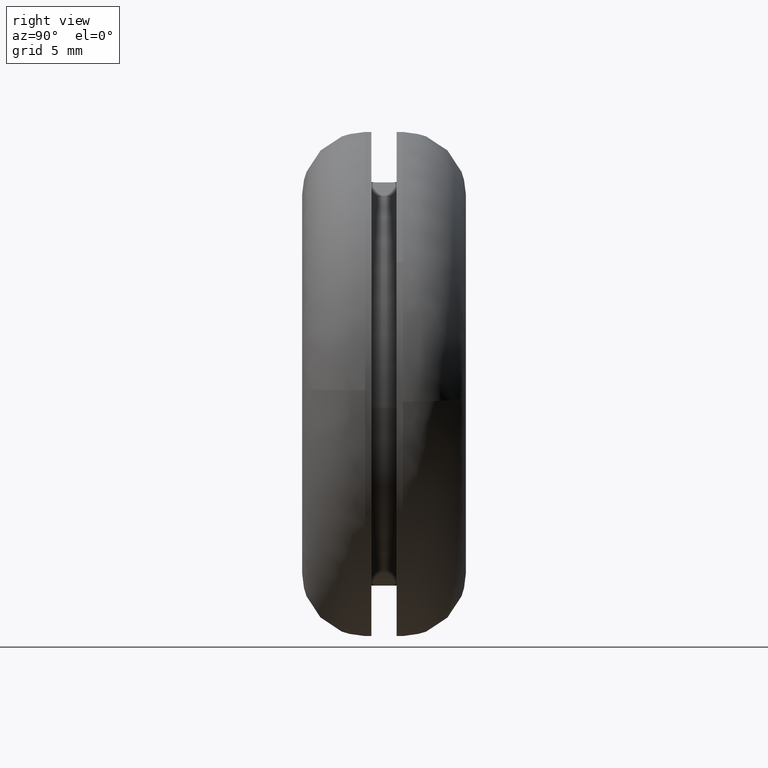
[diagram: clean part render]
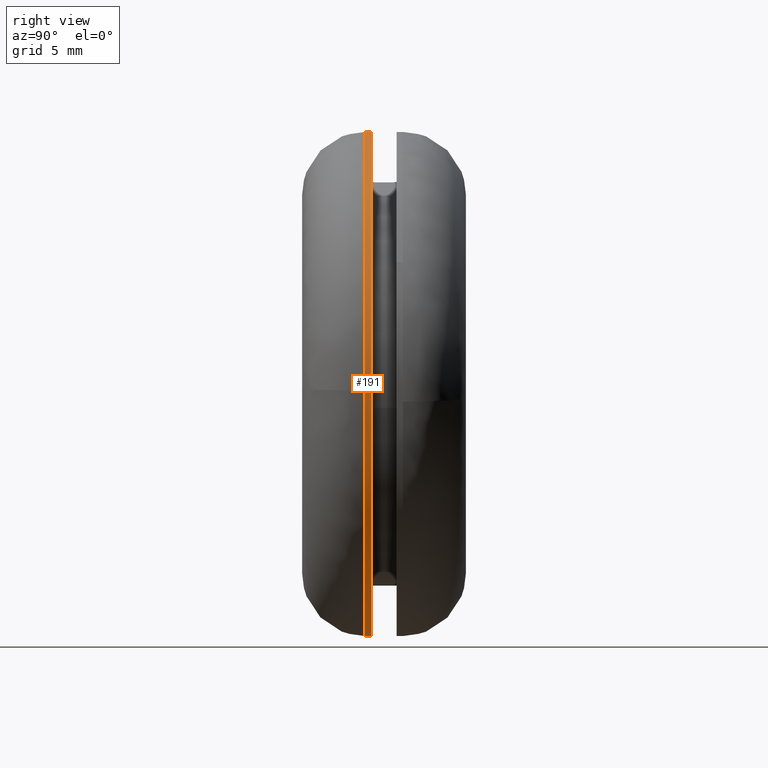
[diagram: same view with one face highlighted and labeled with its STEP entity id]
A machine part, right view. The second image highlights one B-rep face of the part: STEP entity #191.
In plain terms, the highlighted face is a freeform B-spline surface patch.
Its self-contained STEP definition (entity closure, byte-faithful):
#44=CARTESIAN_POINT('',(-13.086793140054096,5.512500000000799,-15.124015515379268));
#45=CARTESIAN_POINT('',(0.381017159569075,5.512500000000799,-26.777696197036420));
#46=CARTESIAN_POINT('',(13.511804152313200,5.512500000000799,-14.745546736202471));
#47=CARTESIAN_POINT('',(28.257350888515678,5.512500000000799,-1.233742583889272));
#48=CARTESIAN_POINT('',(14.745546736202471,5.512500000000799,13.511804152313200));
#49=CARTESIAN_POINT('',(1.233742583889272,5.512500000000799,28.257350888515678));
#50=CARTESIAN_POINT('',(-13.511804152313200,5.512500000000799,14.745546736202471));
#51=CARTESIAN_POINT('',(-13.086793140054096,4.987187499963049,-15.124015515379268));
#52=CARTESIAN_POINT('',(0.381017159569075,4.987187499963050,-26.777696197036420));
#53=CARTESIAN_POINT('',(13.511804152313200,4.987187499963049,-14.745546736202471));
#54=CARTESIAN_POINT('',(28.257350888515678,4.987187499963049,-1.233742583889272));
#55=CARTESIAN_POINT('',(14.745546736202471,4.987187499963049,13.511804152313200));
#56=CARTESIAN_POINT('',(1.233742583889272,4.987187499963049,28.257350888515678));
#57=CARTESIAN_POINT('',(-13.511804152313200,4.987187499963049,14.745546736202471));
#65=(BOUNDED_SURFACE()B_SPLINE_SURFACE(2,1,((#44,#51),(#45,#52),(#46,#53),(#47,#54),(#48,#55),(#49,#56),(#50,#57)),.UNSPECIFIED.,.F.,.F.,.U.)B_SPLINE_SURFACE_WITH_KNOTS((3,2,2,3),(2,2),(0.0,30.486118190659781,63.623203180507367,96.760288170354954),(0.0,1.0),.UNSPECIFIED.)GEOMETRIC_REPRESENTATION_ITEM()RATIONAL_B_SPLINE_SURFACE(((0.956886118190660,0.956886118190660),(0.730538238691624,0.730538238691624),(1.0,1.0),(0.707106781186548,0.707106781186548),(1.0,1.0),(0.707106781186548,0.707106781186548),(1.0,1.0)))REPRESENTATION_ITEM('')SURFACE());
#66=CARTESIAN_POINT('',(-13.086792479413640,5.500000000000005,-15.124016087030650));
#67=VERTEX_POINT('',#66);
#68=CARTESIAN_POINT('',(0.0,5.499999999999900,-20.0));
#69=VERTEX_POINT('',#68);
#70=CARTESIAN_POINT('',(-13.086792479413633,5.500000000000006,-15.124016087030647));
#71=CARTESIAN_POINT('',(-7.451762676201992,5.499999999999901,-19.999999999999996));
#72=CARTESIAN_POINT('',(0.0,5.499999999999900,-20.0));
#80=(BOUNDED_CURVE()B_SPLINE_CURVE(2,(#70,#71,#72),.UNSPECIFIED.,.F.,.U.)B_SPLINE_CURVE_WITH_KNOTS((3,3),(0.885882133147832,1.0),.UNSPECIFIED.)CURVE()GEOMETRIC_REPRESENTATION_ITEM()RATIONAL_B_SPLINE_CURVE((0.854663299575205,0.866302602614174,1.0))REPRESENTATION_ITEM(''));
#81=EDGE_CURVE('',#67,#69,#80,.T.);
#82=ORIENTED_EDGE('',*,*,#81,.T.);
#83=CARTESIAN_POINT('',(0.0,5.499999999999900,20.0));
#84=VERTEX_POINT('',#83);
#85=CARTESIAN_POINT('',(0.0,5.499999999999900,-20.0));
#86=CARTESIAN_POINT('',(19.999999999999996,5.499999999999901,-19.999999999999996));
#87=CARTESIAN_POINT('',(20.0,5.499999999999900,-3.673819E-016));
#88=CARTESIAN_POINT('',(19.999999999999996,5.499999999999901,19.999999999999996));
#89=CARTESIAN_POINT('',(0.0,5.499999999999900,20.0));
#97=(BOUNDED_CURVE()B_SPLINE_CURVE(2,(#85,#86,#87,#88,#89),.UNSPECIFIED.,.F.,.U.)B_SPLINE_CURVE_WITH_KNOTS((3,2,3),(0.0,0.250000000000000,0.500000000000000),.UNSPECIFIED.)CURVE()GEOMETRIC_REPRESENTATION_ITEM()RATIONAL_B_SPLINE_CURVE((1.0,0.707106781186548,1.0,0.707106781186548,1.0))REPRESENTATION_ITEM(''));
#98=EDGE_CURVE('',#69,#84,#97,.T.);
#99=ORIENTED_EDGE('',*,*,#98,.T.);
#100=CARTESIAN_POINT('',(-13.511803360147260,5.499999999999901,14.745547462088750));
#101=VERTEX_POINT('',#100);
#102=CARTESIAN_POINT('',(0.0,5.499999999999900,20.0));
#103=CARTESIAN_POINT('',(-7.777574018593410,5.499999999999900,20.000000000000004));
#104=CARTESIAN_POINT('',(-13.511803360147285,5.499999999999900,14.745547462088767));
#112=(BOUNDED_CURVE()B_SPLINE_CURVE(2,(#102,#103,#104),.UNSPECIFIED.,.F.,.U.)B_SPLINE_CURVE_WITH_KNOTS((3,3),(0.500000000000000,0.618415200974131),.UNSPECIFIED.)CURVE()GEOMETRIC_REPRESENTATION_ITEM()RATIONAL_B_SPLINE_CURVE((1.0,0.861267962520980,0.853959781838990))REPRESENTATION_ITEM(''));
#113=EDGE_CURVE('',#84,#101,#112,.T.);
#114=ORIENTED_EDGE('',*,*,#113,.T.);
#115=CARTESIAN_POINT('',(-13.511803324051590,4.999999999990425,14.745547495163640));
#116=VERTEX_POINT('',#115);
#117=CARTESIAN_POINT('',(-13.511803360147260,5.499999999999901,14.745547462088750));
#118=CARTESIAN_POINT('',(-13.511803324051590,4.999999999990425,14.745547495163640));
#119=QUASI_UNIFORM_CURVE('',1,(#117,#118),.UNSPECIFIED.,.F.,.U.);
#120=EDGE_CURVE('',#101,#116,#119,.T.);
#121=ORIENTED_EDGE('',*,*,#120,.T.);
#122=CARTESIAN_POINT('',(0.0,5.0,20.0));
#123=VERTEX_POINT('',#122);
#124=CARTESIAN_POINT('',(0.0,5.0,20.0));
#125=CARTESIAN_POINT('',(-7.777573990412198,5.0,20.000000000000004));
#126=CARTESIAN_POINT('',(-13.511803324051590,4.999999999990425,14.745547495163644));
#134=(BOUNDED_CURVE()B_SPLINE_CURVE(2,(#124,#125,#126),.UNSPECIFIED.,.F.,.U.)B_SPLINE_CURVE_WITH_KNOTS((3,3),(0.500000000000000,0.618415200604591),.UNSPECIFIED.)CURVE()GEOMETRIC_REPRESENTATION_ITEM()RATIONAL_B_SPLINE_CURVE((1.0,0.861267962953923,0.853959781884604))REPRESENTATION_ITEM(''));
#135=EDGE_CURVE('',#123,#116,#134,.T.);
#136=ORIENTED_EDGE('',*,*,#135,.F.);
#137=CARTESIAN_POINT('',(19.993683785665869,4.999999999963970,-0.502601908872003));
#138=VERTEX_POINT('',#137);
#139=CARTESIAN_POINT('',(19.993683785665869,4.999999999963970,-0.502601908872003));
#140=CARTESIAN_POINT('',(19.999999999999996,5.0,-0.251340642472849));
#141=CARTESIAN_POINT('',(20.0,5.0,-3.673819E-016));
#142=CARTESIAN_POINT('',(19.999999999999996,5.000000000000001,19.999999999999996));
#143=CARTESIAN_POINT('',(0.0,5.0,20.0));
#151=(BOUNDED_CURVE()B_SPLINE_CURVE(2,(#139,#140,#141,#142,#143),.UNSPECIFIED.,.F.,.U.)B_SPLINE_CURVE_WITH_KNOTS((3,2,3),(0.245579891769716,0.250000000000000,0.500000000000000),.UNSPECIFIED.)CURVE()GEOMETRIC_REPRESENTATION_ITEM()RATIONAL_B_SPLINE_CURVE((0.989826157681368,0.994821521091713,1.0,0.707106781186548,1.0))REPRESENTATION_ITEM(''));
#152=EDGE_CURVE('',#138,#123,#151,.T.);
#153=ORIENTED_EDGE('',*,*,#152,.F.);
#154=CARTESIAN_POINT('',(0.0,5.0,-20.0));
#155=VERTEX_POINT('',#154);
#156=CARTESIAN_POINT('',(0.0,5.0,-20.0));
#157=CARTESIAN_POINT('',(19.503557523602723,5.0,-20.0));
#158=CARTESIAN_POINT('',(19.993683785665869,4.999999999963970,-0.502601908872003));
#166=(BOUNDED_CURVE()B_SPLINE_CURVE(2,(#156,#157,#158),.UNSPECIFIED.,.F.,.U.)B_SPLINE_CURVE_WITH_KNOTS((3,3),(0.0,0.245579891769716),.UNSPECIFIED.)CURVE()GEOMETRIC_REPRESENTATION_ITEM()RATIONAL_B_SPLINE_CURVE((1.0,0.712285260094835,0.989826157681368))REPRESENTATION_ITEM(''));
#167=EDGE_CURVE('',#155,#138,#166,.T.);
#168=ORIENTED_EDGE('',*,*,#167,.F.);
#169=CARTESIAN_POINT('',(-13.086792487373920,5.0,-15.124016080142621));
#170=VERTEX_POINT('',#169);
#171=CARTESIAN_POINT('',(-13.086792487373925,5.000000000000001,-15.124016080142617));
#172=CARTESIAN_POINT('',(-7.451762688190008,5.0,-20.0));
#173=CARTESIAN_POINT('',(0.0,5.0,-20.0));
#181=(BOUNDED_CURVE()B_SPLINE_CURVE(2,(#171,#172,#173),.UNSPECIFIED.,.F.,.U.)B_SPLINE_CURVE_WITH_KNOTS((3,3),(0.885882132988790,1.0),.UNSPECIFIED.)CURVE()GEOMETRIC_REPRESENTATION_ITEM()RATIONAL_B_SPLINE_CURVE((0.854663299542762,0.866302602427844,1.0))REPRESENTATION_ITEM(''));
#182=EDGE_CURVE('',#170,#155,#181,.T.);
#183=ORIENTED_EDGE('',*,*,#182,.F.);
#184=CARTESIAN_POINT('',(-13.086792479413640,5.500000000000005,-15.124016087030650));
#185=CARTESIAN_POINT('',(-13.086792487373920,5.0,-15.124016080142621));
#186=QUASI_UNIFORM_CURVE('',1,(#184,#185),.UNSPECIFIED.,.F.,.U.);
#187=EDGE_CURVE('',#67,#170,#186,.T.);
#188=ORIENTED_EDGE('',*,*,#187,.F.);
#189=EDGE_LOOP('',(#82,#99,#114,#121,#136,#153,#168,#183,#188));
#190=FACE_OUTER_BOUND('',#189,.T.);
#191=ADVANCED_FACE('',(#190),#65,.T.);